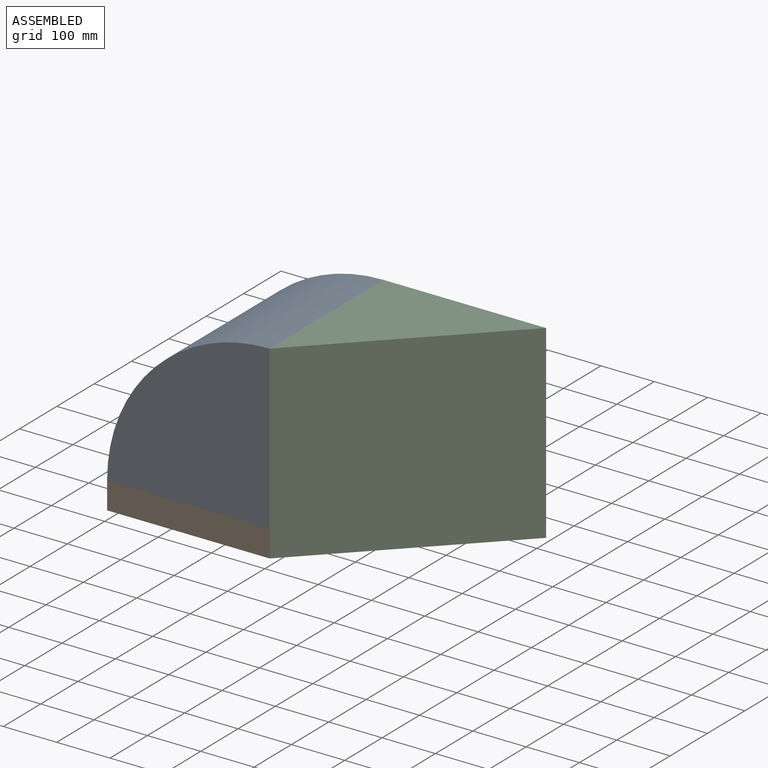
[diagram: assembled view]
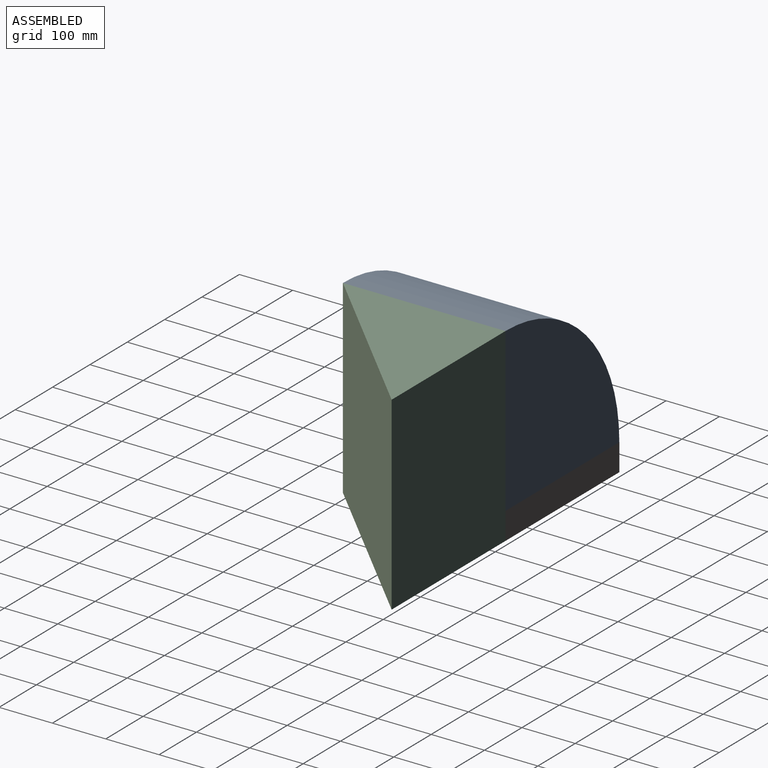
[diagram: assembled view, second angle]
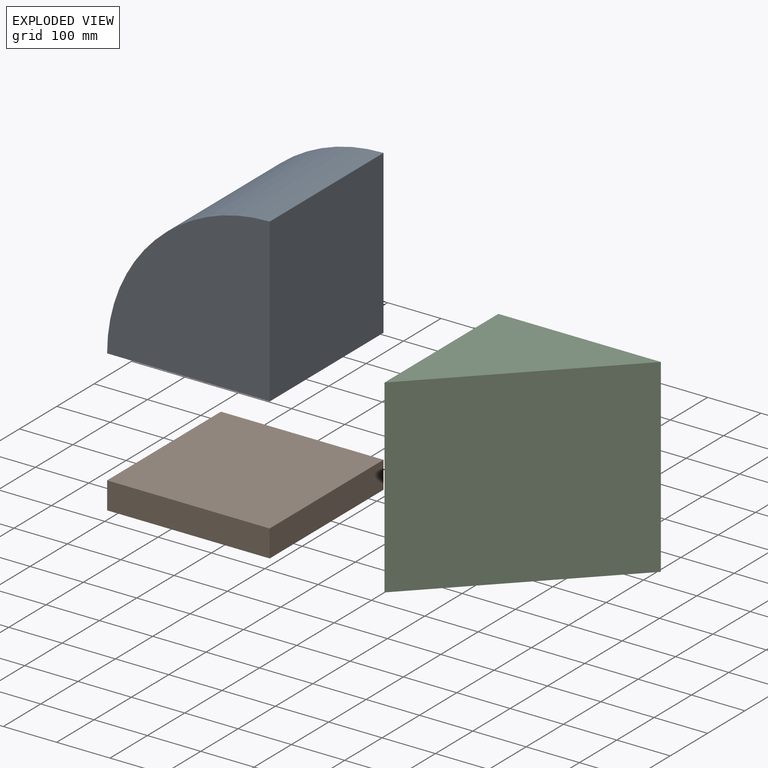
[diagram: exploded view]
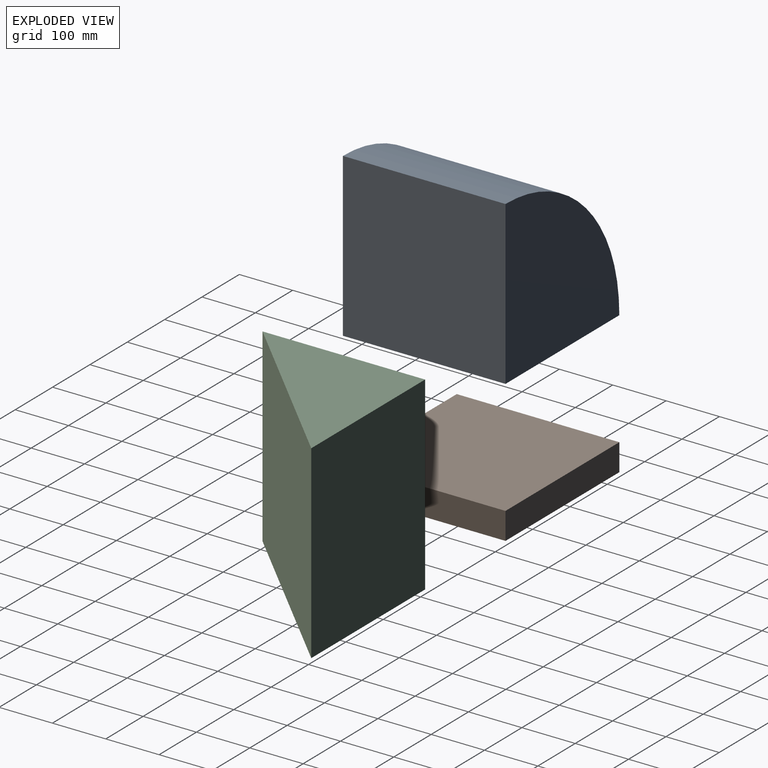
[diagram: exploded view, second angle]
ASSEMBLY  parts=3 mates=2
PART A: 5 faces, bbox 304.8x304.8x304.8 mm
  f0: plane 304.8x304.8mm, normal (0,-1,0), area 72965.9mm2, adj f1,f3,f4
  f1: plane 304.8x304.8mm, normal (1,0,0), area 92903mm2, adj f0,f2,f3,f4
  f2: plane 304.8x304.8mm, normal (0,1,0), area 72965.9mm2, adj f1,f3,f4
  f3: plane 304.8x304.8mm, normal (0,0,-1), area 92903mm2, adj f0,f1,f2,f4
  f4: cylinder r=304.8mm len=304.8mm, axis (0,1,0), area 145931.8mm2, adj f0,f1,f2,f3
PART B: 6 faces, bbox 304.8x304.8x50.8 mm
  f0: plane 304.8x50.8mm, normal (-1,0,0), area 15483.8mm2, adj f1,f3,f4,f5
  f1: plane 304.8x50.8mm, normal (0,-1,0), area 15483.8mm2, adj f0,f2,f4,f5
  f2: plane 304.8x50.8mm, normal (1,0,0), area 15483.8mm2, adj f1,f3,f4,f5
  f3: plane 304.8x50.8mm, normal (0,1,0), area 15483.8mm2, adj f0,f2,f4,f5
  f4: plane 304.8x304.8mm, normal (0,0,1), area 92903mm2, adj f0,f1,f2,f3
  f5: plane 304.8x304.8mm, normal (0,0,-1), area 92903mm2, adj f0,f1,f2,f3
PART C: 5 faces, bbox 304.8x304.8x355.6 mm
  f0: plane 355.6x304.8mm, normal (-1,0,0), area 108386.9mm2, adj f1,f2,f3,f4
  f1: plane 355.6x304.8mm, normal (0,1,0), area 108386.9mm2, adj f0,f2,f3,f4
  f2: plane 304.8x304.8mm, normal (0,0,1), area 46451.5mm2, adj f0,f1,f4
  f3: plane 304.8x304.8mm, normal (0,0,-1), area 46451.5mm2, adj f0,f1,f4
  f4: plane 355.6x304.8mm, normal (0.71,-0.71,0), area 153282.2mm2, adj f0,f1,f2,f3
PLACE A at identity
PLACE B t=(-4.89,0.59,-50.8)mm
PLACE C t=(311.01,-7.8,-50.8)mm
MATE fastened C.f0 <-> A.f1  axis (-1,0,0) through (246.39,99.33,304.8)mm
MATE fastened B.f4 <-> A.f3  axis (0,0,1) through (93.99,99.33,0)mm
